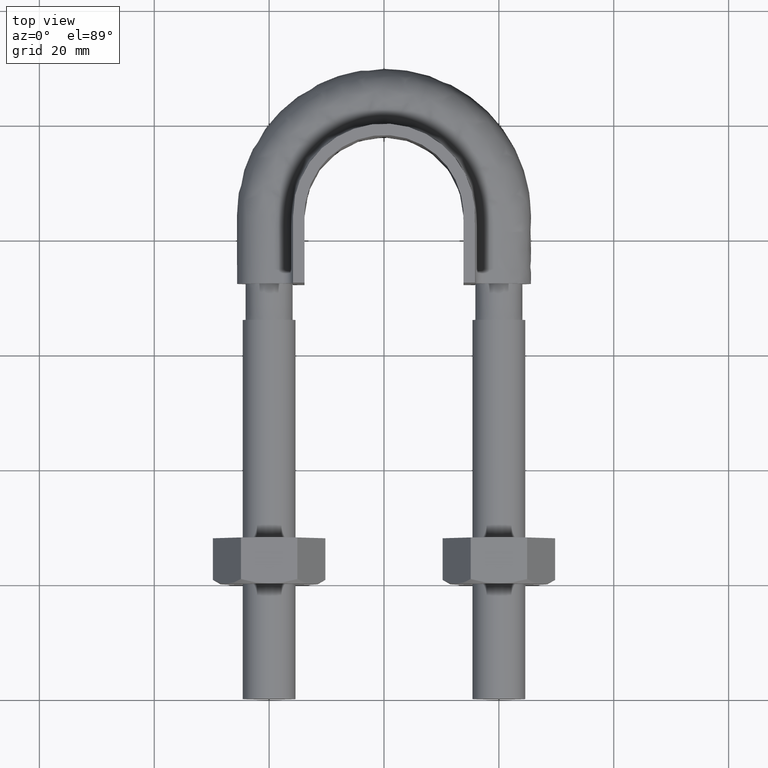
[diagram: clean part render]
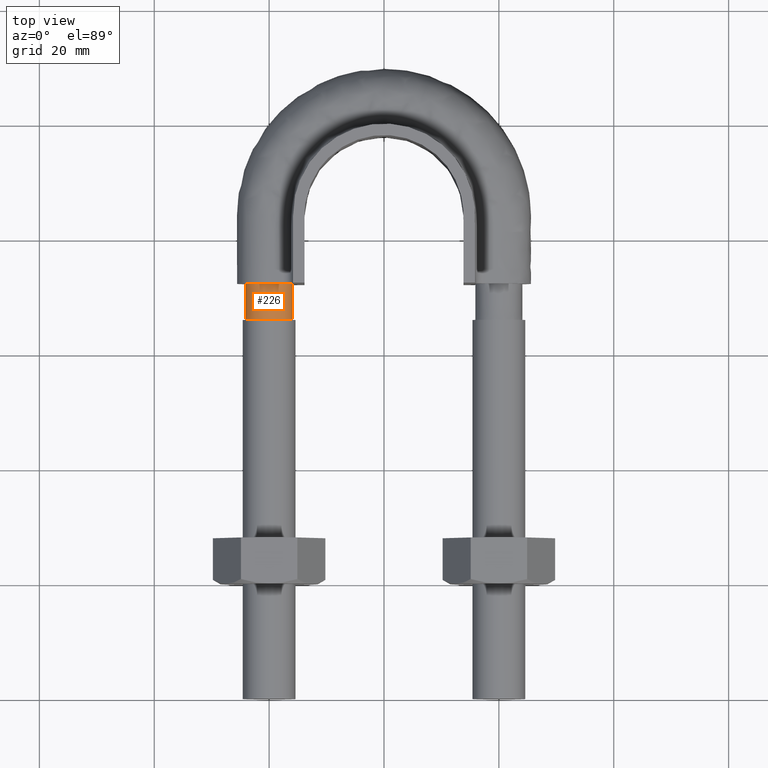
[diagram: same view with one face highlighted and labeled with its STEP entity id]
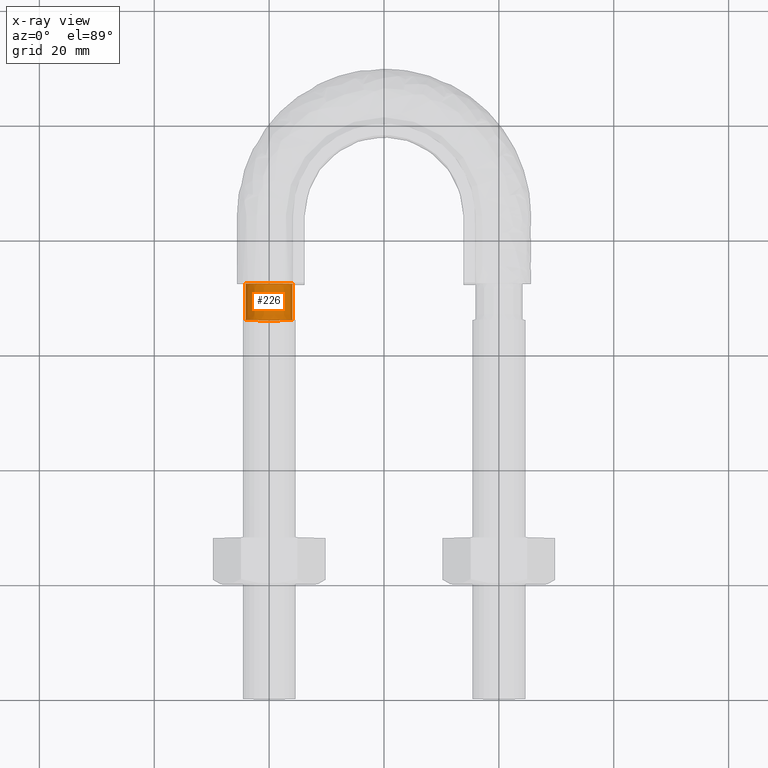
[diagram: x-ray of the same camera — body ghosted, the highlighted face saturated]
A machine part, top view. The second image highlights one B-rep face of the part: STEP entity #226.
The next image is the same camera in x-ray: the body ghosted, the highlighted face saturated — about 0% of this face is hidden behind the body in this view.
In plain terms, the highlighted face is a SurfaceOfExtrusion surface.
Its self-contained STEP definition (entity closure, byte-faithful):
#226 = ADVANCED_FACE( '', ( #299, #300 ), #301, .F. );
#299 = FACE_OUTER_BOUND( '', #1160, .T. );
#300 = FACE_OUTER_BOUND( '', #1161, .T. );
#301 = SURFACE_OF_LINEAR_EXTRUSION( '', #1162, #1163 );
#1160 = EDGE_LOOP( '', ( #1507 ) );
#1161 = EDGE_LOOP( '', ( #1508 ) );
#1162 = B_SPLINE_CURVE_WITH_KNOTS( '', 3, ( #1509, #1510, #1511, #1512, #1513, #1514, #1515, #1516, #1517, #1518 ), .UNSPECIFIED., .T., .F., ( 4, 1, 1, 1, 1, 1, 1, 4 ), ( -1.00000000000000, -0.857142857142857, -0.714285714285714, -0.571428571428571, -0.428571428571429, -0.285714285714286, -0.142857142857143, 0.000000000000000 ), .UNSPECIFIED. );
#1163 = VECTOR( '', #1519, 1000.00000000000 );
#1507 = ORIENTED_EDGE( '', *, *, #1923, .T. );
#1508 = ORIENTED_EDGE( '', *, *, #1924, .F. );
#1509 = CARTESIAN_POINT( '', ( -15.9000000000000, 38.0000000000000, 4.33680868994202E-016 ) );
#1510 = CARTESIAN_POINT( '', ( -15.9000000000000, 38.0000000000000, 1.22184926194408 ) );
#1511 = CARTESIAN_POINT( '', ( -17.0768231851220, 38.0000000000000, 3.66554778583225 ) );
#1512 = CARTESIAN_POINT( '', ( -21.0432697263483, 38.0000000000000, 4.57086332538454 ) );
#1513 = CARTESIAN_POINT( '', ( -24.2241128848102, 38.0000000000000, 2.03422555230246 ) );
#1514 = CARTESIAN_POINT( '', ( -24.2241128848102, 38.0000000000000, -2.03422555230246 ) );
#1515 = CARTESIAN_POINT( '', ( -21.0432697263483, 38.0000000000000, -4.57086332538454 ) );
#1516 = CARTESIAN_POINT( '', ( -17.0768231851220, 38.0000000000000, -3.66554778583225 ) );
#1517 = CARTESIAN_POINT( '', ( -15.9000000000000, 38.0000000000000, -1.22184926194408 ) );
#1518 = CARTESIAN_POINT( '', ( -15.9000000000000, 38.0000000000000, 4.33680868994202E-016 ) );
#1519 = DIRECTION( '', ( 1.22460635382238E-016, 1.00000000000000, 0.000000000000000 ) );
#1923 = EDGE_CURVE( '', #2059, #2059, #2060, .T. );
#1924 = EDGE_CURVE( '', #2061, #2061, #2062, .T. );
#2059 = VERTEX_POINT( '', #2423 );
#2060 = B_SPLINE_CURVE_WITH_KNOTS( '', 3, ( #2424, #2425, #2426, #2427, #2428, #2429, #2430, #2431, #2432, #2433 ), .UNSPECIFIED., .T., .F., ( 4, 1, 1, 1, 1, 1, 1, 4 ), ( -1.00000000000000, -0.857142857142857, -0.714285714285714, -0.571428571428571, -0.428571428571429, -0.285714285714286, -0.142857142857143, 0.000000000000000 ), .UNSPECIFIED. );
#2061 = VERTEX_POINT( '', #2434 );
#2062 = B_SPLINE_CURVE_WITH_KNOTS( '', 3, ( #2435, #2436, #2437, #2438, #2439, #2440, #2441, #2442, #2443, #2444 ), .UNSPECIFIED., .T., .F., ( 4, 1, 1, 1, 1, 1, 1, 4 ), ( -1.00000000000000, -0.857142857142857, -0.714285714285714, -0.571428571428571, -0.428571428571429, -0.285714285714286, -0.142857142857143, 0.000000000000000 ), .UNSPECIFIED. );
#2423 = CARTESIAN_POINT( '', ( -15.9000000000000, 72.3000000000000, 4.33680868994202E-016 ) );
#2424 = CARTESIAN_POINT( '', ( -15.9000000000000, 72.3000000000000, 4.33680868994202E-016 ) );
#2425 = CARTESIAN_POINT( '', ( -15.9000000000000, 72.3000000000000, 1.22184926194408 ) );
#2426 = CARTESIAN_POINT( '', ( -17.0768231851219, 72.3000000000000, 3.66554778583225 ) );
#2427 = CARTESIAN_POINT( '', ( -21.0432697263483, 72.3000000000000, 4.57086332538454 ) );
#2428 = CARTESIAN_POINT( '', ( -24.2241128848102, 72.3000000000000, 2.03422555230246 ) );
#2429 = CARTESIAN_POINT( '', ( -24.2241128848102, 72.3000000000000, -2.03422555230246 ) );
#2430 = CARTESIAN_POINT( '', ( -21.0432697263483, 72.3000000000000, -4.57086332538454 ) );
#2431 = CARTESIAN_POINT( '', ( -17.0768231851219, 72.3000000000000, -3.66554778583225 ) );
#2432 = CARTESIAN_POINT( '', ( -15.9000000000000, 72.3000000000000, -1.22184926194408 ) );
#2433 = CARTESIAN_POINT( '', ( -15.9000000000000, 72.3000000000000, 4.33680868994202E-016 ) );
#2434 = CARTESIAN_POINT( '', ( -15.9000000000000, 66.0000000000000, 4.33680868994202E-016 ) );
#2435 = CARTESIAN_POINT( '', ( -15.9000000000000, 66.0000000000000, 4.33680868994202E-016 ) );
#2436 = CARTESIAN_POINT( '', ( -15.9000000000000, 66.0000000000000, 1.22184926194408 ) );
#2437 = CARTESIAN_POINT( '', ( -17.0768231851220, 66.0000000000000, 3.66554778583225 ) );
#2438 = CARTESIAN_POINT( '', ( -21.0432697263483, 66.0000000000000, 4.57086332538454 ) );
#2439 = CARTESIAN_POINT( '', ( -24.2241128848102, 66.0000000000000, 2.03422555230246 ) );
#2440 = CARTESIAN_POINT( '', ( -24.2241128848102, 66.0000000000000, -2.03422555230246 ) );
#2441 = CARTESIAN_POINT( '', ( -21.0432697263483, 66.0000000000000, -4.57086332538454 ) );
#2442 = CARTESIAN_POINT( '', ( -17.0768231851220, 66.0000000000000, -3.66554778583225 ) );
#2443 = CARTESIAN_POINT( '', ( -15.9000000000000, 66.0000000000000, -1.22184926194408 ) );
#2444 = CARTESIAN_POINT( '', ( -15.9000000000000, 66.0000000000000, 4.33680868994202E-016 ) );